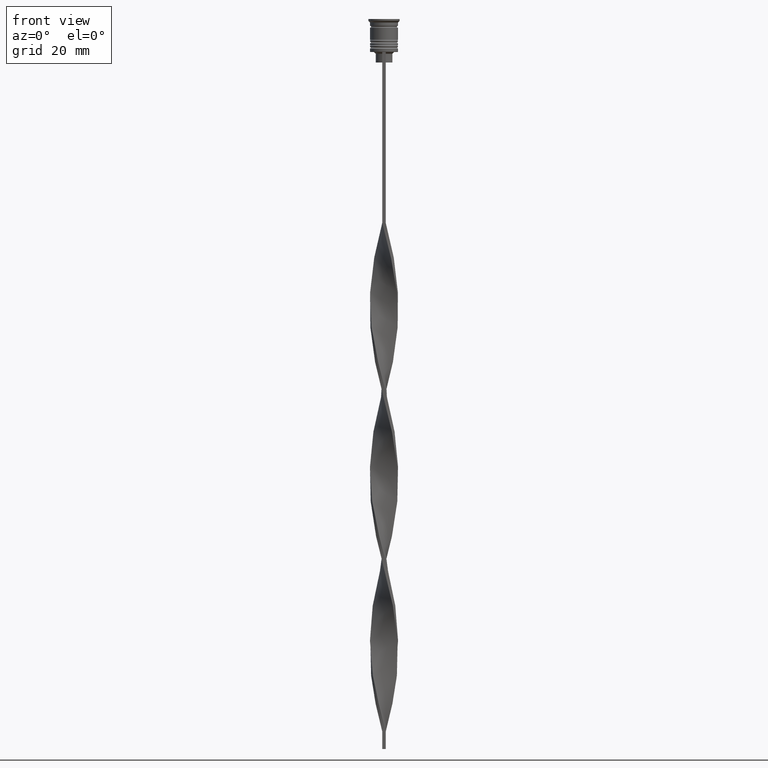
[diagram: clean part render]
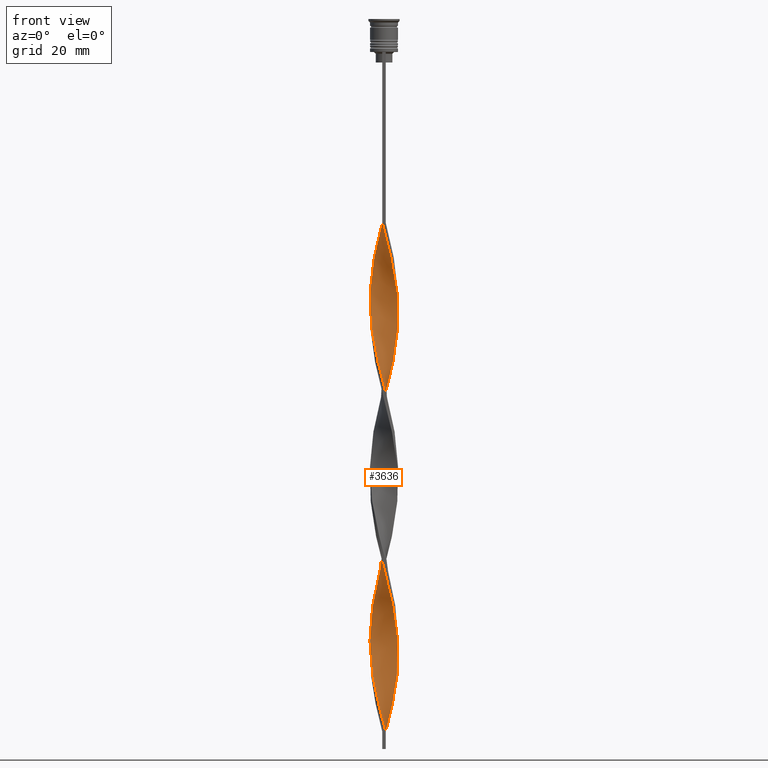
[diagram: same view with one face highlighted and labeled with its STEP entity id]
A machine part, front view. The second image highlights one B-rep face of the part: STEP entity #3636.
In plain terms, the highlighted face is a freeform B-spline surface patch.
Its self-contained STEP definition (entity closure, byte-faithful):
#1 = CARTESIAN_POINT ( 'NONE',  ( -3.710471077655234762, 1.575564781874742026, -127.2058823529411740 ) ) ;
#16 = CARTESIAN_POINT ( 'NONE',  ( -3.493386227310586900, -2.011529931876904875, -141.5196078431372371 ) ) ;
#20 = CARTESIAN_POINT ( 'NONE',  ( 2.240090901653234656, -3.372169066272035387, -114.3235294117646959 ) ) ;
#33 = CARTESIAN_POINT ( 'NONE',  ( 1.226484621108232531, 3.840017639827321805, -104.3039215686274446 ) ) ;
#37 = CARTESIAN_POINT ( 'NONE',  ( 3.927262761293754956, -0.9829235285346251683, -125.7745098039216032 ) ) ;
#52 = CARTESIAN_POINT ( 'NONE',  ( -4.041005374160881125, 0.2445547488692184912, -79.97058823529411598 ) ) ;
#55 = CARTESIAN_POINT ( 'NONE',  ( -1.341092642212325936, 3.819817009255230822, -114.3235294117646959 ) ) ;
#61 = CARTESIAN_POINT ( 'NONE',  ( -3.927262761293754956, 0.9829235285346253903, -77.10784313725490335 ) ) ;
#76 = CARTESIAN_POINT ( 'NONE',  ( -2.630408706874893365, 3.077414741952791299, -120.0490196078431353 ) ) ;
#80 = CARTESIAN_POINT ( 'NONE',  ( -3.151094474987767402, -2.541679576361500548, -91.42156862745096646 ) ) ;
#97 = CARTESIAN_POINT ( 'NONE',  ( 1.911202779450789535, 3.549268084523846678, -198.7745098039215463 ) ) ;
#116 = CARTESIAN_POINT ( 'NONE',  ( 3.984134067727318040, 0.6137391387019219824, -184.4607843137254690 ) ) ;
#126 = CARTESIAN_POINT ( 'NONE',  ( 4.017136395662697979, -0.5021420494578374694, -82.83333333333332860 ) ) ;
#142 = CARTESIAN_POINT ( 'NONE',  ( -3.856468655234276621, -1.231739002543613681, -183.0294117647059124 ) ) ;
#156 = CARTESIAN_POINT ( 'NONE',  ( 2.020147525076907424, 3.508352239459039623, -145.8137254901960489 ) ) ;
#160 = CARTESIAN_POINT ( 'NONE',  ( 4.029070884911789996, 0.1287936502943096417, -130.0686274509803866 ) ) ;
#175 = CARTESIAN_POINT ( 'NONE',  ( -1.341092642212326824, -3.819817009255229934, -100.0098039215686327 ) ) ;
#176 = CARTESIAN_POINT ( 'NONE',  ( 3.306990529297890724, 2.335239837431193788, -191.6176470588235077 ) ) ;
#181 = CARTESIAN_POINT ( 'NONE',  ( 1.341092642212325714, 3.819817009255231266, -148.6764705882353326 ) ) ;
#187 = CARTESIAN_POINT ( 'NONE',  ( 3.710471077655235206, -1.575564781874740694, -78.53921568627450256 ) ) ;
#199 = CARTESIAN_POINT ( 'NONE',  ( 4.041005374160881125, -0.2445547488692170757, -128.6372549019607732 ) ) ;
#203 = CARTESIAN_POINT ( 'NONE',  ( 3.151094474987767402, 2.541679576361500104, -140.0882352941176237 ) ) ;
#207 = CARTESIAN_POINT ( 'NONE',  ( 2.020147525076906536, -3.508352239459040067, -68.51960784313723707 ) ) ;
#216 = CARTESIAN_POINT ( 'NONE',  ( 1.911202779450790201, -3.549268084523846234, -112.8921568627450966 ) ) ;
#220 = CARTESIAN_POINT ( 'NONE',  ( 0.6163684578805417313, -4.001202492166770597, -62.79411764705881893 ) ) ;
#223 = CARTESIAN_POINT ( 'NONE',  ( -2.530837219374231672, -3.137652461479777610, -147.2450980392156907 ) ) ;
#232 = CARTESIAN_POINT ( 'NONE',  ( 4.029070884911789996, 0.1287936502943096417, -130.0686274509803866 ) ) ;
#244 = CARTESIAN_POINT ( 'NONE',  ( -4.017136395662697979, 0.5021420494578380245, -131.5000000000000000 ) ) ;
#260 = CARTESIAN_POINT ( 'NONE',  ( 2.890751590931329940, -2.809547159157145479, -72.81372549019607732 ) ) ;
#265 = CARTESIAN_POINT ( 'NONE',  ( 2.020147525076906536, -3.508352239459040067, -165.8529411764705799 ) ) ;
#281 = CARTESIAN_POINT ( 'NONE',  ( 4.017136395662697979, -0.5021420494578374694, -180.1666666666666288 ) ) ;
#299 = CARTESIAN_POINT ( 'NONE',  ( 2.530837219374230340, 3.137652461479778943, -98.57843137254901933 ) ) ;
#308 = VERTEX_POINT ( 'NONE', #503 ) ;
#312 = CARTESIAN_POINT ( 'NONE',  ( -1.680620083644616125, -3.664084624357134778, -195.9117647058823479 ) ) ;
#319 = CARTESIAN_POINT ( 'NONE',  ( -1.226484621108231199, -3.840017639827321805, -152.9705882352941160 ) ) ;
#325 = CARTESIAN_POINT ( 'NONE',  ( 0.4999999999999994449, -4.000000000000000000, -107.1666666666666572 ) ) ;
#338 = CARTESIAN_POINT ( 'NONE',  ( -0.5000000000000000000, -4.000000000000000000, -155.8333333333333144 ) ) ;
#342 = CARTESIAN_POINT ( 'NONE',  ( 3.679781925323282632, -1.687820026322619960, -122.9117647058823479 ) ) ;
#356 = CARTESIAN_POINT ( 'NONE',  ( 2.890751590931329940, -2.809547159157145479, -170.1470588235293917 ) ) ;
#361 = CARTESIAN_POINT ( 'NONE',  ( -3.936802525448487522, -0.8669405260007247982, -84.26470588235294201 ) ) ;
#375 = CARTESIAN_POINT ( 'NONE',  ( -3.306990529297890724, 2.335239837431193788, -71.38235294117646390 ) ) ;
#378 = CARTESIAN_POINT ( 'NONE',  ( -0.2435115214243295800, 4.023767157643892034, -110.0294117647058698 ) ) ;
#383 = CARTESIAN_POINT ( 'NONE',  ( -3.803522343308519016, 1.335371777428622009, -75.67647058823528994 ) ) ;
#396 = CARTESIAN_POINT ( 'NONE',  ( -0.9787305500464342778, 3.910509750710998933, -112.8921568627450966 ) ) ;
#399 = CARTESIAN_POINT ( 'NONE',  ( -0.2435115214243305515, -4.023767157643892034, -104.3039215686274446 ) ) ;
#416 = CARTESIAN_POINT ( 'NONE',  ( -3.064287033196558596, 2.619187847059357921, -167.2843137254901933 ) ) ;
#441 = CARTESIAN_POINT ( 'NONE',  ( -0.1293454150318810725, 4.046331823121016136, -154.4019607843137294 ) ) ;
#456 = CARTESIAN_POINT ( 'NONE',  ( 0.2435115214243293580, 4.023767157643892034, -152.9705882352941160 ) ) ;
#461 = CARTESIAN_POINT ( 'NONE',  ( -0.2435115214243305515, -4.023767157643892034, -201.6372549019607732 ) ) ;
#472 = CARTESIAN_POINT ( 'NONE',  ( 3.493386227310585568, -2.011529931876906208, -121.4803921568627345 ) ) ;
#491 = CARTESIAN_POINT ( 'NONE',  ( 2.530837219374230784, -3.137652461479778498, -115.7549019607843093 ) ) ;
#496 = CARTESIAN_POINT ( 'NONE',  ( -1.341092642212326824, -3.819817009255229934, -197.3431372549019898 ) ) ;
#503 = CARTESIAN_POINT ( 'NONE',  ( -0.5000000000000000000, -4.000000000000000000, -58.50000000000000000 ) ) ;
#512 = CARTESIAN_POINT ( 'NONE',  ( -1.226484621108232309, 3.840017639827321805, -158.6960784313725412 ) ) ;
#519 = CARTESIAN_POINT ( 'NONE',  ( 3.357783987531980152, -2.230535068783684682, -75.67647058823528994 ) ) ;
#528 = CARTESIAN_POINT ( 'NONE',  ( -4.041005374160881125, 0.2445547488692184912, -177.3039215686274588 ) ) ;
#535 = CARTESIAN_POINT ( 'NONE',  ( -0.2435115214243295800, 4.023767157643892034, -110.0294117647058698 ) ) ;
#551 = CARTESIAN_POINT ( 'NONE',  ( -0.1293454150318809337, -4.046331823121015248, -59.93137254901961342 ) ) ;
#556 = CARTESIAN_POINT ( 'NONE',  ( -1.226484621108231199, -3.840017639827321805, -152.9705882352941160 ) ) ;
#576 = CARTESIAN_POINT ( 'NONE',  ( 0.4999999999999997780, -1.333333333333333481, -204.5000000000000000 ) ) ;
#577 = CARTESIAN_POINT ( 'NONE',  ( -3.679781925323283076, -1.687820026322619293, -140.0882352941176237 ) ) ;
#594 = CARTESIAN_POINT ( 'NONE',  ( 0.2435115214243304405, -4.023767157643892034, -158.6960784313725412 ) ) ;
#603 = CARTESIAN_POINT ( 'NONE',  ( -3.564473500076193790, -1.919390561205868817, -185.8921568627451109 ) ) ;
#609 = CARTESIAN_POINT ( 'NONE',  ( -3.984134067727318040, -0.6137391387019215383, -135.7941176470588118 ) ) ;
#614 = CARTESIAN_POINT ( 'NONE',  ( -1.582314657248345080, 3.726367102775659745, -62.79411764705881893 ) ) ;
#631 = CARTESIAN_POINT ( 'NONE',  ( -1.680620083644616569, 3.664084624357134334, -115.7549019607843093 ) ) ;
#636 = CARTESIAN_POINT ( 'NONE',  ( -2.325278115975899951, -3.292883490705914795, -95.71568627450979250 ) ) ;
#650 = CARTESIAN_POINT ( 'NONE',  ( 2.020147525076906980, -3.508352239459040067, -165.8529411764705799 ) ) ;
#654 = CARTESIAN_POINT ( 'NONE',  ( 1.911202779450790201, -3.549268084523846234, -112.8921568627450966 ) ) ;
#668 = CARTESIAN_POINT ( 'NONE',  ( 4.041005374160881125, 0.2445547488692189353, -85.69607843137254122 ) ) ;
#671 = CARTESIAN_POINT ( 'NONE',  ( -3.564473500076194235, -1.919390561205868817, -88.55882352941175384 ) ) ;
#685 = CARTESIAN_POINT ( 'NONE',  ( -3.856468655234277065, -1.231739002543613681, -85.69607843137254122 ) ) ;
#687 = CARTESIAN_POINT ( 'NONE',  ( -0.6163684578805417313, 4.001202492166770597, -111.4607843137254974 ) ) ;
#693 = CARTESIAN_POINT ( 'NONE',  ( -4.029070884911789108, -0.1287936502943091699, -81.40196078431371518 ) ) ;
#707 = CARTESIAN_POINT ( 'NONE',  ( -3.710471077655235206, -1.575564781874741138, -87.12745098039215463 ) ) ;
#711 = CARTESIAN_POINT ( 'NONE',  ( -0.9787305500464337227, -3.910509750710999821, -198.7745098039215463 ) ) ;
#723 = VERTEX_POINT ( 'NONE', #3484 ) ;
#726 = CARTESIAN_POINT ( 'NONE',  ( 0.5000000000000005551, 4.000000000000000000, -204.5000000000000000 ) ) ;
#730 = CARTESIAN_POINT ( 'NONE',  ( -2.020147525076906536, -3.508352239459040067, -194.4803921568627914 ) ) ;
#745 = CARTESIAN_POINT ( 'NONE',  ( -1.680620083644616125, -3.664084624357134778, -98.57843137254901933 ) ) ;
#751 = CARTESIAN_POINT ( 'NONE',  ( 3.357783987531979708, 2.230535068783685571, -138.6568627450980387 ) ) ;
#757 = CARTESIAN_POINT ( 'NONE',  ( 2.325278115975899507, -3.292883490705915239, -69.95098039215686470 ) ) ;
#769 = CARTESIAN_POINT ( 'NONE',  ( 1.582314657248345080, -3.726367102775659301, -111.4607843137254974 ) ) ;
#774 = CARTESIAN_POINT ( 'NONE',  ( -2.890751590931330384, -2.809547159157145035, -190.1862745098039227 ) ) ;
#786 = CARTESIAN_POINT ( 'NONE',  ( 0.9787305500464340557, 3.910509750710999821, -150.1078431372548891 ) ) ;
#787 = CARTESIAN_POINT ( 'NONE',  ( 3.493386227310586456, 2.011529931876905319, -190.1862745098039227 ) ) ;
#791 = CARTESIAN_POINT ( 'NONE',  ( 4.017136395662697979, 0.5021420494578364702, -131.5000000000000000 ) ) ;
#803 = CARTESIAN_POINT ( 'NONE',  ( -2.530837219374230340, 3.137652461479778943, -164.4215686274509665 ) ) ;
#825 = CARTESIAN_POINT ( 'NONE',  ( -0.6163684578805426195, -4.001202492166770597, -102.8725490196078312 ) ) ;
#833 = CARTESIAN_POINT ( 'NONE',  ( 2.890751590931329940, -2.809547159157145479, -170.1470588235293917 ) ) ;
#849 = CARTESIAN_POINT ( 'NONE',  ( 0.8706545849681186500, 3.953668176878985641, -105.7352941176470722 ) ) ;
#864 = CARTESIAN_POINT ( 'NONE',  ( 3.564473500076193790, -1.919390561205869261, -77.10784313725490335 ) ) ;
#869 = CARTESIAN_POINT ( 'NONE',  ( 3.710471077655235206, -1.575564781874740694, -175.8725490196078454 ) ) ;
#891 = CARTESIAN_POINT ( 'NONE',  ( -0.5000000000000000000, -4.000000000000000000, -155.8333333333333144 ) ) ;
#905 = CARTESIAN_POINT ( 'NONE',  ( 2.821583537095227356, 2.903135856687522942, -97.14705882352940591 ) ) ;
#911 = CARTESIAN_POINT ( 'NONE',  ( -3.927262761293754956, -0.9829235285346239470, -137.2254901960784821 ) ) ;
#923 = CARTESIAN_POINT ( 'NONE',  ( 3.679781925323283076, 1.687820026322619738, -91.42156862745098067 ) ) ;
#929 = CARTESIAN_POINT ( 'NONE',  ( 2.821583537095226468, -2.903135856687523830, -117.1862745098039369 ) ) ;
#946 = CARTESIAN_POINT ( 'NONE',  ( -1.226484621108232309, 3.840017639827321805, -61.36274509803921262 ) ) ;
#948 = CARTESIAN_POINT ( 'NONE',  ( 0.9787305500464337227, -3.910509750710999821, -161.5588235294117680 ) ) ;
#954 = CARTESIAN_POINT ( 'NONE',  ( 3.679781925323283076, 1.687820026322619738, -188.7549019607843093 ) ) ;
#966 = CARTESIAN_POINT ( 'NONE',  ( -2.240090901653234656, 3.372169066272035387, -65.65686274509803866 ) ) ;
#968 = CARTESIAN_POINT ( 'NONE',  ( 3.151094474987766958, -2.541679576361500104, -171.5784313725490620 ) ) ;
#972 = CARTESIAN_POINT ( 'NONE',  ( -4.017136395662697979, -0.5021420494578370253, -82.83333333333332860 ) ) ;
#986 = CARTESIAN_POINT ( 'NONE',  ( -0.5000000000000000000, 4.000000000000000000, -58.50000000000000000 ) ) ;
#988 = CARTESIAN_POINT ( 'NONE',  ( 3.984134067727318040, 0.6137391387019219824, -87.12745098039215463 ) ) ;
#991 = CARTESIAN_POINT ( 'NONE',  ( -2.020147525076906536, -3.508352239459040067, -97.14705882352939170 ) ) ;
#1008 = CARTESIAN_POINT ( 'NONE',  ( -3.679781925323283076, 1.687820026322619293, -74.24509803921567652 ) ) ;
#1016 = CARTESIAN_POINT ( 'NONE',  ( -3.984134067727318040, 0.6137391387019215383, -78.53921568627450256 ) ) ;
#1037 = CARTESIAN_POINT ( 'NONE',  ( 3.927262761293754956, 0.9829235285346250572, -88.55882352941175384 ) ) ;
#1046 = CARTESIAN_POINT ( 'NONE',  ( -2.630408706874892921, -3.077414741952791744, -94.28431372549020750 ) ) ;
#1047 = CARTESIAN_POINT ( 'NONE',  ( 4.029070884911789996, -0.1287936502943097528, -181.5980392156862706 ) ) ;
#1050 = CARTESIAN_POINT ( 'NONE',  ( -2.821583537095227356, 2.903135856687522942, -165.8529411764705799 ) ) ;
#1068 = CARTESIAN_POINT ( 'NONE',  ( -3.064287033196558596, 2.619187847059357921, -167.2843137254901933 ) ) ;
#1074 = CARTESIAN_POINT ( 'NONE',  ( 0.2435115214243293580, 4.023767157643892034, -152.9705882352941160 ) ) ;
#1079 = CARTESIAN_POINT ( 'NONE',  ( 3.564473500076194235, -1.919390561205869261, -77.10784313725490335 ) ) ;
#1080 = ORIENTED_EDGE ( 'NONE', *, *, #2331, .T. ) ;
#1090 = CARTESIAN_POINT ( 'NONE',  ( -2.020147525076906980, -3.508352239459040067, -97.14705882352940591 ) ) ;
#1094 = CARTESIAN_POINT ( 'NONE',  ( -4.041005374160881125, 0.2445547488692185190, -177.3039215686274304 ) ) ;
#1097 = CARTESIAN_POINT ( 'NONE',  ( 4.029070884911789996, -0.1287936502943097528, -84.26470588235294201 ) ) ;
#1104 = CARTESIAN_POINT ( 'NONE',  ( -3.803522343308519016, 1.335371777428622009, -173.0098039215686185 ) ) ;
#1110 = CARTESIAN_POINT ( 'NONE',  ( -3.493386227310586012, 2.011529931876905763, -170.1470588235293917 ) ) ;
#1113 = CARTESIAN_POINT ( 'NONE',  ( 2.890751590931329940, -2.809547159157145479, -72.81372549019607732 ) ) ;
#1123 = CARTESIAN_POINT ( 'NONE',  ( -3.493386227310586012, 2.011529931876905763, -170.1470588235293917 ) ) ;
#1130 = CARTESIAN_POINT ( 'NONE',  ( 1.680620083644616125, -3.664084624357134778, -67.08823529411763786 ) ) ;
#1136 = CARTESIAN_POINT ( 'NONE',  ( 2.821583537095227356, 2.903135856687522942, -97.14705882352939170 ) ) ;
#1154 = CARTESIAN_POINT ( 'NONE',  ( -2.630408706874893809, 3.077414741952791744, -120.0490196078431211 ) ) ;
#1163 = CARTESIAN_POINT ( 'NONE',  ( -3.710471077655235206, -1.575564781874741138, -184.4607843137254690 ) ) ;
#1171 = CARTESIAN_POINT ( 'NONE',  ( 3.357783987531980152, -2.230535068783684682, -173.0098039215686185 ) ) ;
#1192 = CARTESIAN_POINT ( 'NONE',  ( -2.890751590931329496, 2.809547159157145924, -121.4803921568627345 ) ) ;
#1211 = CARTESIAN_POINT ( 'NONE',  ( -3.710471077655234762, 1.575564781874742026, -127.2058823529411740 ) ) ;
#1215 = CARTESIAN_POINT ( 'NONE',  ( 3.064287033196559040, 2.619187847059357477, -95.71568627450979250 ) ) ;
#1228 = CARTESIAN_POINT ( 'NONE',  ( 3.927262761293755400, 0.9829235285346250572, -88.55882352941175384 ) ) ;
#1233 = CARTESIAN_POINT ( 'NONE',  ( 2.530837219374230784, -3.137652461479778498, -115.7549019607843093 ) ) ;
#1245 = CARTESIAN_POINT ( 'NONE',  ( -3.936802525448487522, 0.8669405260007250202, -130.0686274509803866 ) ) ;
#1253 = CARTESIAN_POINT ( 'NONE',  ( -2.630408706874893365, -3.077414741952792188, -94.28431372549020750 ) ) ;
#1271 = CARTESIAN_POINT ( 'NONE',  ( 2.630408706874892921, -3.077414741952791744, -168.7156862745097783 ) ) ;
#1275 = CARTESIAN_POINT ( 'NONE',  ( 2.821583537095227356, 2.903135856687522942, -194.4803921568627914 ) ) ;
#1286 = CARTESIAN_POINT ( 'NONE',  ( 0.5000000000000005551, 4.000000000000000000, -204.5000000000000000 ) ) ;
#1290 = CARTESIAN_POINT ( 'NONE',  ( 4.017136395662697979, -0.5021420494578374694, -82.83333333333332860 ) ) ;
#1293 = CARTESIAN_POINT ( 'NONE',  ( -2.890751590931330384, -2.809547159157145035, -92.85294117647057988 ) ) ;
#1311 = CARTESIAN_POINT ( 'NONE',  ( 0.5000000000000005551, 4.000000000000000000, -204.5000000000000000 ) ) ;
#1322 =( BOUNDED_SURFACE ( )  B_SPLINE_SURFACE ( 1, 2, ( 
 ( #2000, #2597, #2037, #3213, #1694, #2909, #3825, #207, #757, #1374, #1113, #2336, #519, #1079, #187, #1395, #2854, #126, #1097, #1340, #3766, #1037, #2260, #3466, #2732, #2114, #1215, #1136, #299, #2990, #2394, #2653, #3267, #849, #2053, #1453, #535, #2435, #2675, #1735, #3862, #3882, #3306, #1154, #1192, #3023, #3644, #2071, #1, #3324, #2967, #244, #2691, #1510, #1752, #911, #2132, #577, #3342, #1811, #2948, #2416, #223, #2377, #1471, #3625, #556, #3917, #891, #3583, #594, #1775, #1431, #3283, #2358, #265, #3566, #3900, #833, #1794, #1171, #3602, #869, #2095, #3006, #281, #1490, #2708, #2828, #3686, #2453, #954, #1553, #3723, #2810, #1275, #1915, #3423, #97, #2515, #3047, #1872, #1311 ),
 ( #3366, #3744, #2194, #614, #3663, #3109, #1532, #2497, #2770, #2176, #3705, #2237, #383, #61, #1016, #1594, #693, #972, #361, #1833, #3401, #671, #1893, #80, #1293, #1253, #636, #991, #2215, #3127, #2473, #2154, #399, #1612, #325, #2535, #3385, #2752, #654, #20, #1233, #929, #3088, #1854, #3067, #342, #1572, #37, #2791, #1690, #160, #791, #2316, #2928, #1391, #1933, #751, #203, #3506, #2633, #2615, #2848, #1977, #181, #1410, #2274, #1074, #441, #3483, #1651, #3165, #2905, #1336, #2870, #3144, #1050, #416, #3840, #1110, #3189, #1997, #3822, #3801, #1094, #1712, #3444, #2298, #142, #1953, #3523, #2255, #2592, #774, #1628, #2013, #730, #3227, #496, #711, #3779, #461, #3460, #1353 ) ),
 .UNSPECIFIED., .F., .F., .T. ) 
 B_SPLINE_SURFACE_WITH_KNOTS ( ( 2, 2 ),
 ( 3, 2, 2, 2, 2, 2, 2, 2, 2, 2, 2, 2, 2, 2, 2, 2, 2, 2, 2, 2, 2, 2, 2, 2, 2, 2, 2, 2, 2, 2, 2, 2, 2, 2, 2, 2, 2, 2, 2, 2, 2, 2, 2, 2, 2, 2, 2, 2, 2, 2, 2, 3 ),
 ( 0.000000000000000000, 1.000000000000000000 ),
 ( 0.000000000000000000, 0.01470588235294117627, 0.02941176470588235253, 0.04411764705882353227, 0.05882352941176470507, 0.07352941176470588480, 0.08823529411764706454, 0.1029411764705882304, 0.1176470588235294101, 0.1323529411764705899, 0.1470588235294117696, 0.1617647058823529493, 0.1764705882352941291, 0.1911764705882352811, 0.2058823529411764608, 0.2205882352941176405, 0.2352941176470588203, 0.2500000000000000000, 0.2647058823529411797, 0.2794117647058823595, 0.2941176470588235392, 0.3088235294117647189, 0.3235294117647058987, 0.3382352941176470784, 0.3529411764705882582, 0.3676470588235294379, 0.3823529411764705621, 0.3970588235294117418, 0.4117647058823529216, 0.4264705882352941013, 0.4411764705882352811, 0.4558823529411764608, 0.4705882352941176405, 0.4852941176470588203, 0.5000000000000000000, 0.5147058823529411242, 0.5294117647058823595, 0.5441176470588234837, 0.5588235294117647189, 0.5735294117647058432, 0.5882352941176470784, 0.6029411764705882026, 0.6176470588235294379, 0.6323529411764705621, 0.6470588235294117974, 0.6617647058823529216, 0.6764705882352941568, 0.6911764705882352811, 0.7058823529411765163, 0.7205882352941176405, 0.7352941176470588758, 0.7500000000000000000 ),
 .UNSPECIFIED. ) 
 GEOMETRIC_REPRESENTATION_ITEM ( )  RATIONAL_B_SPLINE_SURFACE ( (
 ( 1.000000000000000000, 0.9957341762950344677, 1.000000000000000000, 0.9957341762950344677, 1.000000000000000000, 0.9957341762950344677, 1.000000000000000000, 0.9957341762950344677, 1.000000000000000000, 0.9957341762950344677, 1.000000000000000000, 0.9957341762950344677, 1.000000000000000000, 0.9957341762950344677, 1.000000000000000000, 0.9957341762950344677, 1.000000000000000000, 0.9957341762950344677, 1.000000000000000000, 0.9957341762950344677, 1.000000000000000000, 0.9957341762950344677, 1.000000000000000000, 0.9957341762950344677, 1.000000000000000000, 0.9957341762950344677, 1.000000000000000000, 0.9957341762950344677, 1.000000000000000000, 0.9957341762950344677, 1.000000000000000000, 0.9957341762950344677, 1.000000000000000000, 0.9957341762950344677, 1.000000000000000000, 0.9957341762950344677, 1.000000000000000000, 0.9957341762950344677, 1.000000000000000000, 0.9957341762950344677, 1.000000000000000000, 0.9957341762950344677, 1.000000000000000000, 0.9957341762950344677, 1.000000000000000000, 0.9957341762950344677, 1.000000000000000000, 0.9957341762950344677, 1.000000000000000000, 0.9957341762950344677, 1.000000000000000000, 0.9957341762950344677, 1.000000000000000000, 0.9957341762950344677, 1.000000000000000000, 0.9957341762950344677, 1.000000000000000000, 0.9957341762950344677, 1.000000000000000000, 0.9957341762950344677, 1.000000000000000000, 0.9957341762950344677, 1.000000000000000000, 0.9957341762950344677, 1.000000000000000000, 0.9957341762950344677, 1.000000000000000000, 0.9957341762950344677, 1.000000000000000000, 0.9957341762950344677, 1.000000000000000000, 0.9957341762950344677, 1.000000000000000000, 0.9957341762950344677, 1.000000000000000000, 0.9957341762950344677, 1.000000000000000000, 0.9957341762950344677, 1.000000000000000000, 0.9957341762950344677, 1.000000000000000000, 0.9957341762950344677, 1.000000000000000000, 0.9957341762950344677, 1.000000000000000000, 0.9957341762950344677, 1.000000000000000000, 0.9957341762950344677, 1.000000000000000000, 0.9957341762950344677, 1.000000000000000000, 0.9957341762950344677, 1.000000000000000000, 0.9957341762950344677, 1.000000000000000000, 0.9957341762950344677, 1.000000000000000000, 0.9957341762950344677, 1.000000000000000000, 0.9957341762950344677, 1.000000000000000000, 0.9957341762950344677, 1.000000000000000000),
 ( 1.000000000000000000, 0.9957341762950344677, 1.000000000000000000, 0.9957341762950344677, 1.000000000000000000, 0.9957341762950344677, 1.000000000000000000, 0.9957341762950344677, 1.000000000000000000, 0.9957341762950344677, 1.000000000000000000, 0.9957341762950344677, 1.000000000000000000, 0.9957341762950344677, 1.000000000000000000, 0.9957341762950344677, 1.000000000000000000, 0.9957341762950344677, 1.000000000000000000, 0.9957341762950344677, 1.000000000000000000, 0.9957341762950344677, 1.000000000000000000, 0.9957341762950344677, 1.000000000000000000, 0.9957341762950344677, 1.000000000000000000, 0.9957341762950344677, 1.000000000000000000, 0.9957341762950344677, 1.000000000000000000, 0.9957341762950344677, 1.000000000000000000, 0.9957341762950344677, 1.000000000000000000, 0.9957341762950344677, 1.000000000000000000, 0.9957341762950344677, 1.000000000000000000, 0.9957341762950344677, 1.000000000000000000, 0.9957341762950344677, 1.000000000000000000, 0.9957341762950344677, 1.000000000000000000, 0.9957341762950344677, 1.000000000000000000, 0.9957341762950344677, 1.000000000000000000, 0.9957341762950344677, 1.000000000000000000, 0.9957341762950344677, 1.000000000000000000, 0.9957341762950344677, 1.000000000000000000, 0.9957341762950344677, 1.000000000000000000, 0.9957341762950344677, 1.000000000000000000, 0.9957341762950344677, 1.000000000000000000, 0.9957341762950344677, 1.000000000000000000, 0.9957341762950344677, 1.000000000000000000, 0.9957341762950344677, 1.000000000000000000, 0.9957341762950344677, 1.000000000000000000, 0.9957341762950344677, 1.000000000000000000, 0.9957341762950344677, 1.000000000000000000, 0.9957341762950344677, 1.000000000000000000, 0.9957341762950344677, 1.000000000000000000, 0.9957341762950344677, 1.000000000000000000, 0.9957341762950344677, 1.000000000000000000, 0.9957341762950344677, 1.000000000000000000, 0.9957341762950344677, 1.000000000000000000, 0.9957341762950344677, 1.000000000000000000, 0.9957341762950344677, 1.000000000000000000, 0.9957341762950344677, 1.000000000000000000, 0.9957341762950344677, 1.000000000000000000, 0.9957341762950344677, 1.000000000000000000, 0.9957341762950344677, 1.000000000000000000, 0.9957341762950344677, 1.000000000000000000, 0.9957341762950344677, 1.000000000000000000, 0.9957341762950344677, 1.000000000000000000) ) ) 
 REPRESENTATION_ITEM ( '' )  SURFACE ( )  );
#1331 = CARTESIAN_POINT ( 'NONE',  ( 3.936802525448486634, -0.8669405260007252423, -178.7352941176470438 ) ) ;
#1336 = CARTESIAN_POINT ( 'NONE',  ( -1.911202779450789535, 3.549268084523846678, -161.5588235294117680 ) ) ;
#1340 = CARTESIAN_POINT ( 'NONE',  ( 4.041005374160881125, 0.2445547488692189630, -85.69607843137254122 ) ) ;
#1353 = CARTESIAN_POINT ( 'NONE',  ( 0.4999999999999994449, -4.000000000000000000, -204.5000000000000000 ) ) ;
#1367 = CARTESIAN_POINT ( 'NONE',  ( 3.064287033196558596, -2.619187847059357921, -118.6176470588235219 ) ) ;
#1374 = CARTESIAN_POINT ( 'NONE',  ( 2.630408706874893365, -3.077414741952792188, -71.38235294117646390 ) ) ;
#1385 = CARTESIAN_POINT ( 'NONE',  ( 0.4999999999999994449, -4.000000000000000000, -107.1666666666666572 ) ) ;
#1386 = VECTOR ( 'NONE', #2510, 1000.000000000000000 ) ;
#1387 = CARTESIAN_POINT ( 'NONE',  ( 3.357783987531980152, -2.230535068783684682, -173.0098039215686185 ) ) ;
#1391 = CARTESIAN_POINT ( 'NONE',  ( 3.710471077655235206, 1.575564781874740694, -135.7941176470588118 ) ) ;
#1395 = CARTESIAN_POINT ( 'NONE',  ( 3.856468655234276621, -1.231739002543613237, -79.97058823529411598 ) ) ;
#1406 = CARTESIAN_POINT ( 'NONE',  ( 3.856468655234277065, 1.231739002543614125, -134.3627450980391984 ) ) ;
#1410 = CARTESIAN_POINT ( 'NONE',  ( 0.9787305500464340557, 3.910509750710999821, -150.1078431372548891 ) ) ;
#1423 = CARTESIAN_POINT ( 'NONE',  ( -1.911202779450789535, 3.549268084523846678, -161.5588235294117680 ) ) ;
#1428 = CARTESIAN_POINT ( 'NONE',  ( 0.4999999999999994449, -4.000000000000000000, -204.5000000000000000 ) ) ;
#1431 = CARTESIAN_POINT ( 'NONE',  ( 0.9787305500464337227, -3.910509750710999821, -161.5588235294117680 ) ) ;
#1440 = CARTESIAN_POINT ( 'NONE',  ( 3.936802525448487522, 0.8669405260007234659, -132.9313725490196134 ) ) ;
#1451 = CARTESIAN_POINT ( 'NONE',  ( 0.5000000000000005551, 4.000000000000000000, -204.5000000000000000 ) ) ;
#1453 = CARTESIAN_POINT ( 'NONE',  ( 0.1293454150318806006, 4.046331823121015248, -108.5980392156862706 ) ) ;
#1462 = CARTESIAN_POINT ( 'NONE',  ( -3.357783987531980152, -2.230535068783684238, -187.3235294117646959 ) ) ;
#1471 = CARTESIAN_POINT ( 'NONE',  ( -1.911202779450789979, -3.549268084523846678, -150.1078431372548891 ) ) ;
#1490 = CARTESIAN_POINT ( 'NONE',  ( 4.029070884911789996, -0.1287936502943097528, -181.5980392156862706 ) ) ;
#1499 = CARTESIAN_POINT ( 'NONE',  ( -3.936802525448487522, -0.8669405260007247982, -181.5980392156862706 ) ) ;
#1510 = CARTESIAN_POINT ( 'NONE',  ( -4.041005374160881125, -0.2445547488692193794, -134.3627450980391984 ) ) ;
#1528 = CARTESIAN_POINT ( 'NONE',  ( -0.1293454150318809337, -4.046331823121015248, -157.2647058823529278 ) ) ;
#1532 = CARTESIAN_POINT ( 'NONE',  ( -2.530837219374230340, 3.137652461479778943, -67.08823529411763786 ) ) ;
#1549 = CARTESIAN_POINT ( 'NONE',  ( 0.6163684578805417313, -4.001202492166770597, -160.1274509803921831 ) ) ;
#1553 = CARTESIAN_POINT ( 'NONE',  ( 3.493386227310586456, 2.011529931876905319, -190.1862745098039227 ) ) ;
#1563 = CARTESIAN_POINT ( 'NONE',  ( -3.803522343308519016, 1.335371777428622009, -75.67647058823528994 ) ) ;
#1565 = CARTESIAN_POINT ( 'NONE',  ( 0.1293454150318806006, 4.046331823121015248, -108.5980392156862706 ) ) ;
#1572 = CARTESIAN_POINT ( 'NONE',  ( 3.803522343308519016, -1.335371777428620899, -124.3431372549019471 ) ) ;
#1588 = CARTESIAN_POINT ( 'NONE',  ( -3.984134067727318040, 0.6137391387019215383, -78.53921568627450256 ) ) ;
#1590 = CARTESIAN_POINT ( 'NONE',  ( -2.020147525076906092, 3.508352239459040067, -117.1862745098039227 ) ) ;
#1594 = CARTESIAN_POINT ( 'NONE',  ( -4.041005374160881125, 0.2445547488692185190, -79.97058823529411598 ) ) ;
#1609 = CARTESIAN_POINT ( 'NONE',  ( 1.911202779450789535, 3.549268084523846678, -101.4411764705882320 ) ) ;
#1612 = CARTESIAN_POINT ( 'NONE',  ( 0.1293454150318815721, -4.046331823121016136, -105.7352941176470722 ) ) ;
#1624 = CARTESIAN_POINT ( 'NONE',  ( -3.493386227310586012, 2.011529931876905763, -72.81372549019607732 ) ) ;
#1628 = CARTESIAN_POINT ( 'NONE',  ( -2.630408706874893365, -3.077414741952792188, -191.6176470588235077 ) ) ;
#1651 = CARTESIAN_POINT ( 'NONE',  ( -0.8706545849681190941, 3.953668176878984752, -157.2647058823529278 ) ) ;
#1670 = CARTESIAN_POINT ( 'NONE',  ( 0.8706545849681194271, -3.953668176878985197, -108.5980392156862706 ) ) ;
#1686 = CARTESIAN_POINT ( 'NONE',  ( 3.927262761293755400, -0.9829235285346252793, -125.7745098039216032 ) ) ;
#1687 = CARTESIAN_POINT ( 'NONE',  ( 3.856468655234277065, -1.231739002543613237, -177.3039215686274588 ) ) ;
#1690 = CARTESIAN_POINT ( 'NONE',  ( 4.041005374160881125, -0.2445547488692170757, -128.6372549019607447 ) ) ;
#1694 = CARTESIAN_POINT ( 'NONE',  ( 0.9787305500464337227, -3.910509750710999821, -64.22549019607842524 ) ) ;
#1706 = CARTESIAN_POINT ( 'NONE',  ( 2.890751590931330828, 2.809547159157144591, -141.5196078431372371 ) ) ;
#1712 = CARTESIAN_POINT ( 'NONE',  ( -4.029070884911789108, -0.1287936502943091699, -178.7352941176470438 ) ) ;
#1728 = CARTESIAN_POINT ( 'NONE',  ( -3.306990529297890724, 2.335239837431193788, -168.7156862745097783 ) ) ;
#1735 = CARTESIAN_POINT ( 'NONE',  ( -1.341092642212325936, 3.819817009255230822, -114.3235294117646959 ) ) ;
#1745 = CARTESIAN_POINT ( 'NONE',  ( 3.984134067727318040, -0.6137391387019228706, -127.2058823529411740 ) ) ;
#1752 = CARTESIAN_POINT ( 'NONE',  ( -3.984134067727318040, -0.6137391387019215383, -135.7941176470588118 ) ) ;
#1769 = CARTESIAN_POINT ( 'NONE',  ( 1.341092642212326380, -3.819817009255230822, -65.65686274509803866 ) ) ;
#1775 = CARTESIAN_POINT ( 'NONE',  ( 0.6163684578805417313, -4.001202492166771485, -160.1274509803922115 ) ) ;
#1794 = CARTESIAN_POINT ( 'NONE',  ( 3.151094474987767402, -2.541679576361500104, -171.5784313725490335 ) ) ;
#1802 = CARTESIAN_POINT ( 'NONE',  ( -3.151094474987766958, -2.541679576361500548, -188.7549019607843093 ) ) ;
#1811 = CARTESIAN_POINT ( 'NONE',  ( -3.306990529297890724, -2.335239837431195120, -142.9509803921568789 ) ) ;
#1821 = CARTESIAN_POINT ( 'NONE',  ( -1.341092642212326824, -3.819817009255229934, -197.3431372549019613 ) ) ;
#1827 = CARTESIAN_POINT ( 'NONE',  ( -2.530837219374231672, -3.137652461479777610, -147.2450980392156907 ) ) ;
#1833 = CARTESIAN_POINT ( 'NONE',  ( -3.856468655234276621, -1.231739002543613681, -85.69607843137254122 ) ) ;
#1850 = CARTESIAN_POINT ( 'NONE',  ( -4.029070884911789996, 0.1287936502943111128, -132.9313725490196134 ) ) ;
#1854 = CARTESIAN_POINT ( 'NONE',  ( 3.306990529297891612, -2.335239837431193344, -120.0490196078431211 ) ) ;
#1868 = CARTESIAN_POINT ( 'NONE',  ( -1.582314657248346412, -3.726367102775658413, -151.5392156862744741 ) ) ;
#1872 = CARTESIAN_POINT ( 'NONE',  ( 0.8706545849681186500, 3.953668176878985641, -203.0686274509803582 ) ) ;
#1887 = CARTESIAN_POINT ( 'NONE',  ( 3.803522343308519016, 1.335371777428621565, -89.99019607843136725 ) ) ;
#1893 = CARTESIAN_POINT ( 'NONE',  ( -3.357783987531980152, -2.230535068783684238, -89.99019607843136725 ) ) ;
#1908 = ORIENTED_EDGE ( 'NONE', *, *, #2235, .T. ) ;
#1912 = CARTESIAN_POINT ( 'NONE',  ( 4.029070884911789996, -0.1287936502943097528, -84.26470588235294201 ) ) ;
#1915 = CARTESIAN_POINT ( 'NONE',  ( 2.530837219374230340, 3.137652461479778943, -195.9117647058823479 ) ) ;
#1933 = CARTESIAN_POINT ( 'NONE',  ( 3.564473500076195123, 1.919390561205867707, -137.2254901960784821 ) ) ;
#1953 = CARTESIAN_POINT ( 'NONE',  ( -3.710471077655235206, -1.575564781874741138, -184.4607843137254690 ) ) ;
#1971 = CARTESIAN_POINT ( 'NONE',  ( -0.2435115214243305515, -4.023767157643892034, -104.3039215686274446 ) ) ;
#1977 = CARTESIAN_POINT ( 'NONE',  ( 1.680620083644617901, 3.664084624357133446, -147.2450980392156907 ) ) ;
#1990 =( BOUNDED_CURVE ( )  B_SPLINE_CURVE ( 2, ( #986, #3159, #946, #3082, #2170, #966, #3737, #2232, #3379, #375, #1624, #1008, #1563, #3440, #1588, #52, #2805, #2207, #3415, #685, #707, #2842, #2899, #3557, #3835, #1046, #2941, #1090, #745, #175, #3205, #825, #1971, #2046, #1385, #1670, #2609, #769, #216, #2027, #491, #2958, #1367, #3241, #472, #3818, #3851, #1686, #1745, #199, #232, #2587, #1440, #1406, #3775, #2883, #2328, #3184, #1706, #1991, #2311, #156, #3518, #3477, #786, #2269, #456, #3795, #2008, #3535, #512, #2628, #1423, #3260, #803, #3222, #1068, #1728, #1123, #2922, #1104, #2643, #2346, #528, #2292, #3502, #1499, #2083, #1163, #603, #1462, #1802, #2719, #3575, #2122, #3892, #312, #1821, #2141, #2997, #3909, #2367, #3930 ),
 .UNSPECIFIED., .F., .F. ) 
 B_SPLINE_CURVE_WITH_KNOTS ( ( 3, 2, 2, 2, 2, 2, 2, 2, 2, 2, 2, 2, 2, 2, 2, 2, 2, 2, 2, 2, 2, 2, 2, 2, 2, 2, 2, 2, 2, 2, 2, 2, 2, 2, 2, 2, 2, 2, 2, 2, 2, 2, 2, 2, 2, 2, 2, 2, 2, 2, 2, 3 ),
 ( 0.000000000000000000, 0.01470588235294117453, 0.02941176470588234906, 0.04411764705882353227, 0.05882352941176469813, 0.07352941176470588480, 0.08823529411764706454, 0.1029411764705882443, 0.1176470588235293963, 0.1323529411764705899, 0.1470588235294117696, 0.1617647058823529493, 0.1764705882352941291, 0.1911764705882352811, 0.2058823529411764885, 0.2205882352941176405, 0.2352941176470587925, 0.2500000000000000000, 0.2647058823529411797, 0.2794117647058823595, 0.2941176470588235392, 0.3088235294117647189, 0.3235294117647058987, 0.3382352941176470229, 0.3529411764705882582, 0.3676470588235294379, 0.3823529411764705621, 0.3970588235294117418, 0.4117647058823529771, 0.4264705882352941013, 0.4411764705882352811, 0.4558823529411764608, 0.4705882352941175850, 0.4852941176470588203, 0.5000000000000000000, 0.5147058823529411242, 0.5294117647058823595, 0.5441176470588234837, 0.5588235294117647189, 0.5735294117647058432, 0.5882352941176470784, 0.6029411764705882026, 0.6176470588235294379, 0.6323529411764705621, 0.6470588235294117974, 0.6617647058823529216, 0.6764705882352940458, 0.6911764705882351700, 0.7058823529411765163, 0.7205882352941176405, 0.7352941176470588758, 0.7500000000000000000 ),
 .UNSPECIFIED. ) 
 CURVE ( )  GEOMETRIC_REPRESENTATION_ITEM ( )  RATIONAL_B_SPLINE_CURVE ( ( 1.000000000000000000, 0.9957341762950344677, 1.000000000000000000, 0.9957341762950344677, 1.000000000000000000, 0.9957341762950344677, 1.000000000000000000, 0.9957341762950344677, 1.000000000000000000, 0.9957341762950344677, 1.000000000000000000, 0.9957341762950344677, 1.000000000000000000, 0.9957341762950344677, 1.000000000000000000, 0.9957341762950344677, 1.000000000000000000, 0.9957341762950344677, 1.000000000000000000, 0.9957341762950344677, 1.000000000000000000, 0.9957341762950344677, 1.000000000000000000, 0.9957341762950344677, 1.000000000000000000, 0.9957341762950344677, 1.000000000000000000, 0.9957341762950344677, 1.000000000000000000, 0.9957341762950344677, 1.000000000000000000, 0.9957341762950344677, 1.000000000000000000, 0.9957341762950344677, 1.000000000000000000, 0.9957341762950344677, 1.000000000000000000, 0.9957341762950344677, 1.000000000000000000, 0.9957341762950344677, 1.000000000000000000, 0.9957341762950344677, 1.000000000000000000, 0.9957341762950344677, 1.000000000000000000, 0.9957341762950344677, 1.000000000000000000, 0.9957341762950344677, 1.000000000000000000, 0.9957341762950344677, 1.000000000000000000, 0.9957341762950344677, 1.000000000000000000, 0.9957341762950344677, 1.000000000000000000, 0.9957341762950344677, 1.000000000000000000, 0.9957341762950344677, 1.000000000000000000, 0.9957341762950344677, 1.000000000000000000, 0.9957341762950344677, 1.000000000000000000, 0.9957341762950344677, 1.000000000000000000, 0.9957341762950344677, 1.000000000000000000, 0.9957341762950344677, 1.000000000000000000, 0.9957341762950344677, 1.000000000000000000, 0.9957341762950344677, 1.000000000000000000, 0.9957341762950344677, 1.000000000000000000, 0.9957341762950344677, 1.000000000000000000, 0.9957341762950344677, 1.000000000000000000, 0.9957341762950344677, 1.000000000000000000, 0.9957341762950344677, 1.000000000000000000, 0.9957341762950344677, 1.000000000000000000, 0.9957341762950344677, 1.000000000000000000, 0.9957341762950344677, 1.000000000000000000, 0.9957341762950344677, 1.000000000000000000, 0.9957341762950344677, 1.000000000000000000, 0.9957341762950344677, 1.000000000000000000, 0.9957341762950344677, 1.000000000000000000, 0.9957341762950344677, 1.000000000000000000, 0.9957341762950344677, 1.000000000000000000, 0.9957341762950344677, 1.000000000000000000 ) ) 
 REPRESENTATION_ITEM ( '' )  );
#1991 = CARTESIAN_POINT ( 'NONE',  ( 2.630408706874892033, 3.077414741952792188, -142.9509803921568789 ) ) ;
#1993 = CARTESIAN_POINT ( 'NONE',  ( 1.582314657248345968, 3.726367102775659301, -200.2058823529411882 ) ) ;
#1997 = CARTESIAN_POINT ( 'NONE',  ( -3.803522343308519016, 1.335371777428622009, -173.0098039215686185 ) ) ;
#2000 = CARTESIAN_POINT ( 'NONE',  ( -0.5000000000000000000, -4.000000000000000000, -58.50000000000000000 ) ) ;
#2008 = CARTESIAN_POINT ( 'NONE',  ( -0.5000000000000000000, 4.000000000000000000, -155.8333333333333144 ) ) ;
#2009 = CARTESIAN_POINT ( 'NONE',  ( 3.927262761293755400, 0.9829235285346250572, -185.8921568627451109 ) ) ;
#2013 = CARTESIAN_POINT ( 'NONE',  ( -2.325278115975899951, -3.292883490705914795, -193.0490196078431211 ) ) ;
#2027 = CARTESIAN_POINT ( 'NONE',  ( 2.240090901653234212, -3.372169066272035387, -114.3235294117646959 ) ) ;
#2037 = CARTESIAN_POINT ( 'NONE',  ( 0.2435115214243304405, -4.023767157643892034, -61.36274509803921262 ) ) ;
#2046 = CARTESIAN_POINT ( 'NONE',  ( 0.1293454150318815721, -4.046331823121016136, -105.7352941176470722 ) ) ;
#2050 = CARTESIAN_POINT ( 'NONE',  ( 2.630408706874892921, -3.077414741952791744, -71.38235294117646390 ) ) ;
#2053 = CARTESIAN_POINT ( 'NONE',  ( 0.5000000000000005551, 4.000000000000000000, -107.1666666666666572 ) ) ;
#2071 = CARTESIAN_POINT ( 'NONE',  ( -3.564473500076194235, 1.919390561205869039, -125.7745098039216032 ) ) ;
#2083 = CARTESIAN_POINT ( 'NONE',  ( -3.856468655234277065, -1.231739002543613681, -183.0294117647059124 ) ) ;
#2090 = CARTESIAN_POINT ( 'NONE',  ( 3.710471077655235206, -1.575564781874740694, -78.53921568627450256 ) ) ;
#2095 = CARTESIAN_POINT ( 'NONE',  ( 3.856468655234276621, -1.231739002543613237, -177.3039215686274304 ) ) ;
#2114 = CARTESIAN_POINT ( 'NONE',  ( 3.306990529297891168, 2.335239837431193788, -94.28431372549020750 ) ) ;
#2122 = CARTESIAN_POINT ( 'NONE',  ( -2.325278115975899951, -3.292883490705914795, -193.0490196078431211 ) ) ;
#2128 = CARTESIAN_POINT ( 'NONE',  ( -4.017136395662697979, 0.5021420494578380245, -131.5000000000000000 ) ) ;
#2132 = CARTESIAN_POINT ( 'NONE',  ( -3.803522343308518572, -1.335371777428622897, -138.6568627450980387 ) ) ;
#2141 = CARTESIAN_POINT ( 'NONE',  ( -0.9787305500464337227, -3.910509750710999821, -198.7745098039215463 ) ) ;
#2149 = CARTESIAN_POINT ( 'NONE',  ( 3.064287033196559040, 2.619187847059357477, -95.71568627450979250 ) ) ;
#2154 = CARTESIAN_POINT ( 'NONE',  ( -0.6163684578805426195, -4.001202492166771485, -102.8725490196078312 ) ) ;
#2170 = CARTESIAN_POINT ( 'NONE',  ( -1.911202779450789535, 3.549268084523846678, -64.22549019607842524 ) ) ;
#2172 = CARTESIAN_POINT ( 'NONE',  ( 1.341092642212326380, -3.819817009255230822, -162.9901960784313530 ) ) ;
#2176 = CARTESIAN_POINT ( 'NONE',  ( -3.306990529297891168, 2.335239837431193788, -71.38235294117646390 ) ) ;
#2191 = CARTESIAN_POINT ( 'NONE',  ( -3.856468655234277954, 1.231739002543611905, -128.6372549019607732 ) ) ;
#2194 = CARTESIAN_POINT ( 'NONE',  ( -1.226484621108232309, 3.840017639827321805, -61.36274509803921262 ) ) ;
#2207 = CARTESIAN_POINT ( 'NONE',  ( -4.017136395662697979, -0.5021420494578370253, -82.83333333333332860 ) ) ;
#2210 = CARTESIAN_POINT ( 'NONE',  ( -3.064287033196558152, -2.619187847059358365, -144.3823529411764639 ) ) ;
#2215 = CARTESIAN_POINT ( 'NONE',  ( -1.680620083644616125, -3.664084624357134778, -98.57843137254901933 ) ) ;
#2232 = CARTESIAN_POINT ( 'NONE',  ( -2.821583537095227356, 2.903135856687522942, -68.51960784313725128 ) ) ;
#2235 = EDGE_CURVE ( 'NONE', #308, #723, #2824, .T. ) ;
#2237 = CARTESIAN_POINT ( 'NONE',  ( -3.679781925323283076, 1.687820026322619293, -74.24509803921567652 ) ) ;
#2255 = CARTESIAN_POINT ( 'NONE',  ( -3.357783987531980152, -2.230535068783684238, -187.3235294117646959 ) ) ;
#2260 = CARTESIAN_POINT ( 'NONE',  ( 3.803522343308519016, 1.335371777428621565, -89.99019607843136725 ) ) ;
#2269 = CARTESIAN_POINT ( 'NONE',  ( 0.6163684578805429526, 4.001202492166770597, -151.5392156862744741 ) ) ;
#2270 = CARTESIAN_POINT ( 'NONE',  ( 0.8706545849681186500, 3.953668176878986085, -203.0686274509803582 ) ) ;
#2274 = CARTESIAN_POINT ( 'NONE',  ( 0.6163684578805430636, 4.001202492166771485, -151.5392156862744741 ) ) ;
#2279 = FACE_OUTER_BOUND ( 'NONE', #3467, .T. ) ;
#2292 = CARTESIAN_POINT ( 'NONE',  ( -4.029070884911789108, -0.1287936502943091699, -178.7352941176470438 ) ) ;
#2298 = CARTESIAN_POINT ( 'NONE',  ( -3.936802525448487522, -0.8669405260007247982, -181.5980392156862706 ) ) ;
#2311 = CARTESIAN_POINT ( 'NONE',  ( 2.325278115975899063, 3.292883490705915683, -144.3823529411764639 ) ) ;
#2312 = CARTESIAN_POINT ( 'NONE',  ( 3.710471077655235206, -1.575564781874740694, -175.8725490196078454 ) ) ;
#2316 = CARTESIAN_POINT ( 'NONE',  ( 3.936802525448487522, 0.8669405260007234659, -132.9313725490196134 ) ) ;
#2328 = CARTESIAN_POINT ( 'NONE',  ( 3.357783987531979708, 2.230535068783685571, -138.6568627450980387 ) ) ;
#2331 = EDGE_CURVE ( 'NONE', #723, #3702, #1990, .T. ) ;
#2336 = CARTESIAN_POINT ( 'NONE',  ( 3.151094474987767402, -2.541679576361500104, -74.24509803921567652 ) ) ;
#2346 = CARTESIAN_POINT ( 'NONE',  ( -3.984134067727318040, 0.6137391387019215383, -175.8725490196078454 ) ) ;
#2352 = CARTESIAN_POINT ( 'NONE',  ( 2.020147525076906980, -3.508352239459040067, -68.51960784313725128 ) ) ;
#2358 = CARTESIAN_POINT ( 'NONE',  ( 1.680620083644616125, -3.664084624357134778, -164.4215686274509665 ) ) ;
#2367 = CARTESIAN_POINT ( 'NONE',  ( 0.1293454150318815721, -4.046331823121016136, -203.0686274509803582 ) ) ;
#2377 = CARTESIAN_POINT ( 'NONE',  ( -2.240090901653234656, -3.372169066272035831, -148.6764705882353326 ) ) ;
#2393 = CARTESIAN_POINT ( 'NONE',  ( 0.5000000000000002220, 1.333333333333333481, -204.5000000000000000 ) ) ;
#2394 = CARTESIAN_POINT ( 'NONE',  ( 1.911202779450789535, 3.549268084523846678, -101.4411764705882320 ) ) ;
#2416 = CARTESIAN_POINT ( 'NONE',  ( -2.821583537095227356, -2.903135856687522498, -145.8137254901960489 ) ) ;
#2431 = CARTESIAN_POINT ( 'NONE',  ( -2.240090901653234212, -3.372169066272035831, -148.6764705882353326 ) ) ;
#2435 = CARTESIAN_POINT ( 'NONE',  ( -0.6163684578805417313, 4.001202492166771485, -111.4607843137254974 ) ) ;
#2448 = CARTESIAN_POINT ( 'NONE',  ( -3.306990529297890280, -2.335239837431195120, -142.9509803921568789 ) ) ;
#2453 = CARTESIAN_POINT ( 'NONE',  ( 3.803522343308519016, 1.335371777428621565, -187.3235294117646959 ) ) ;
#2468 = CARTESIAN_POINT ( 'NONE',  ( -3.803522343308518572, -1.335371777428622897, -138.6568627450980387 ) ) ;
#2473 = CARTESIAN_POINT ( 'NONE',  ( -0.9787305500464337227, -3.910509750710999821, -101.4411764705882320 ) ) ;
#2492 = CARTESIAN_POINT ( 'NONE',  ( -3.927262761293755400, -0.9829235285346239470, -137.2254901960784537 ) ) ;
#2497 = CARTESIAN_POINT ( 'NONE',  ( -2.821583537095227356, 2.903135856687522942, -68.51960784313723707 ) ) ;
#2510 = DIRECTION ( 'NONE',  ( 0.000000000000000000, 1.000000000000000000, 0.000000000000000000 ) ) ;
#2512 = CARTESIAN_POINT ( 'NONE',  ( -3.564473500076193790, 1.919390561205869039, -125.7745098039216032 ) ) ;
#2515 = CARTESIAN_POINT ( 'NONE',  ( 1.582314657248345968, 3.726367102775659745, -200.2058823529411598 ) ) ;
#2535 = CARTESIAN_POINT ( 'NONE',  ( 0.8706545849681194271, -3.953668176878984752, -108.5980392156862706 ) ) ;
#2553 = CARTESIAN_POINT ( 'NONE',  ( 4.017136395662697979, -0.5021420494578374694, -180.1666666666666288 ) ) ;
#2587 = CARTESIAN_POINT ( 'NONE',  ( 4.017136395662697979, 0.5021420494578364702, -131.5000000000000000 ) ) ;
#2592 = CARTESIAN_POINT ( 'NONE',  ( -3.151094474987767402, -2.541679576361500548, -188.7549019607843093 ) ) ;
#2597 = CARTESIAN_POINT ( 'NONE',  ( -0.1293454150318809337, -4.046331823121015248, -59.93137254901961342 ) ) ;
#2609 = CARTESIAN_POINT ( 'NONE',  ( 1.226484621108231421, -3.840017639827321805, -110.0294117647058698 ) ) ;
#2611 = CARTESIAN_POINT ( 'NONE',  ( 4.041005374160881125, 0.2445547488692189353, -183.0294117647059124 ) ) ;
#2615 = CARTESIAN_POINT ( 'NONE',  ( 2.325278115975899063, 3.292883490705915683, -144.3823529411764639 ) ) ;
#2628 = CARTESIAN_POINT ( 'NONE',  ( -1.582314657248345080, 3.726367102775659301, -160.1274509803921831 ) ) ;
#2633 = CARTESIAN_POINT ( 'NONE',  ( 2.630408706874892033, 3.077414741952792632, -142.9509803921568789 ) ) ;
#2643 = CARTESIAN_POINT ( 'NONE',  ( -3.927262761293755400, 0.9829235285346255013, -174.4411764705882320 ) ) ;
#2653 = CARTESIAN_POINT ( 'NONE',  ( 1.582314657248345968, 3.726367102775659745, -102.8725490196078312 ) ) ;
#2675 = CARTESIAN_POINT ( 'NONE',  ( -0.9787305500464342778, 3.910509750710998933, -112.8921568627450966 ) ) ;
#2691 = CARTESIAN_POINT ( 'NONE',  ( -4.029070884911789996, 0.1287936502943111128, -132.9313725490196134 ) ) ;
#2692 = EDGE_CURVE ( 'NONE', #3838, #3702, #3293, .T. ) ;
#2708 = CARTESIAN_POINT ( 'NONE',  ( 4.041005374160881125, 0.2445547488692189630, -183.0294117647059124 ) ) ;
#2719 = CARTESIAN_POINT ( 'NONE',  ( -2.890751590931330384, -2.809547159157145035, -190.1862745098039227 ) ) ;
#2732 = CARTESIAN_POINT ( 'NONE',  ( 3.493386227310586456, 2.011529931876905319, -92.85294117647057988 ) ) ;
#2748 = CARTESIAN_POINT ( 'NONE',  ( -3.151094474987766514, 2.541679576361500992, -122.9117647058823621 ) ) ;
#2752 = CARTESIAN_POINT ( 'NONE',  ( 1.582314657248345080, -3.726367102775659745, -111.4607843137254974 ) ) ;
#2765 = CARTESIAN_POINT ( 'NONE',  ( 2.530837219374230340, 3.137652461479778943, -98.57843137254901933 ) ) ;
#2770 = CARTESIAN_POINT ( 'NONE',  ( -3.064287033196558596, 2.619187847059357921, -69.95098039215686470 ) ) ;
#2786 = CARTESIAN_POINT ( 'NONE',  ( -3.357783987531981040, 2.230535068783683350, -124.3431372549019471 ) ) ;
#2791 = CARTESIAN_POINT ( 'NONE',  ( 3.984134067727318040, -0.6137391387019228706, -127.2058823529411740 ) ) ;
#2800 = ORIENTED_EDGE ( 'NONE', *, *, #3810, .F. ) ;
#2805 = CARTESIAN_POINT ( 'NONE',  ( -4.029070884911789108, -0.1287936502943091699, -81.40196078431371518 ) ) ;
#2807 = CARTESIAN_POINT ( 'NONE',  ( -2.325278115975899507, 3.292883490705915239, -118.6176470588235219 ) ) ;
#2810 = CARTESIAN_POINT ( 'NONE',  ( 3.064287033196559040, 2.619187847059357477, -193.0490196078431211 ) ) ;
#2824 = LINE ( 'NONE', #3102, #1386 ) ;
#2825 = CARTESIAN_POINT ( 'NONE',  ( 1.582314657248345968, 3.726367102775659301, -102.8725490196078312 ) ) ;
#2828 = CARTESIAN_POINT ( 'NONE',  ( 3.984134067727318040, 0.6137391387019219824, -184.4607843137254690 ) ) ;
#2842 = CARTESIAN_POINT ( 'NONE',  ( -3.564473500076193790, -1.919390561205868817, -88.55882352941175384 ) ) ;
#2848 = CARTESIAN_POINT ( 'NONE',  ( 2.020147525076906980, 3.508352239459039623, -145.8137254901960489 ) ) ;
#2854 = CARTESIAN_POINT ( 'NONE',  ( 3.936802525448486634, -0.8669405260007252423, -81.40196078431371518 ) ) ;
#2867 = CARTESIAN_POINT ( 'NONE',  ( 1.226484621108232531, 3.840017639827321805, -201.6372549019607732 ) ) ;
#2870 = CARTESIAN_POINT ( 'NONE',  ( -2.240090901653235100, 3.372169066272035387, -162.9901960784313815 ) ) ;
#2883 = CARTESIAN_POINT ( 'NONE',  ( 3.564473500076194679, 1.919390561205867707, -137.2254901960784537 ) ) ;
#2884 = CARTESIAN_POINT ( 'NONE',  ( 3.679781925323283076, 1.687820026322619738, -188.7549019607843093 ) ) ;
#2899 = CARTESIAN_POINT ( 'NONE',  ( -3.357783987531980152, -2.230535068783684238, -89.99019607843136725 ) ) ;
#2905 = CARTESIAN_POINT ( 'NONE',  ( -1.582314657248345080, 3.726367102775659745, -160.1274509803922115 ) ) ;
#2909 = CARTESIAN_POINT ( 'NONE',  ( 1.341092642212326380, -3.819817009255230822, -65.65686274509803866 ) ) ;
#2922 = CARTESIAN_POINT ( 'NONE',  ( -3.679781925323283076, 1.687820026322619293, -171.5784313725490620 ) ) ;
#2928 = CARTESIAN_POINT ( 'NONE',  ( 3.856468655234276621, 1.231739002543614125, -134.3627450980391984 ) ) ;
#2941 = CARTESIAN_POINT ( 'NONE',  ( -2.325278115975899951, -3.292883490705914795, -95.71568627450979250 ) ) ;
#2945 = CARTESIAN_POINT ( 'NONE',  ( 0.2435115214243304405, -4.023767157643892034, -61.36274509803921262 ) ) ;
#2948 = CARTESIAN_POINT ( 'NONE',  ( -3.064287033196558152, -2.619187847059358365, -144.3823529411764639 ) ) ;
#2958 = CARTESIAN_POINT ( 'NONE',  ( 2.821583537095226468, -2.903135856687523830, -117.1862745098039227 ) ) ;
#2967 = CARTESIAN_POINT ( 'NONE',  ( -3.936802525448487522, 0.8669405260007250202, -130.0686274509803866 ) ) ;
#2985 = ORIENTED_EDGE ( 'NONE', *, *, #2692, .F. ) ;
#2990 = CARTESIAN_POINT ( 'NONE',  ( 2.240090901653235544, 3.372169066272034499, -100.0098039215686327 ) ) ;
#2997 = CARTESIAN_POINT ( 'NONE',  ( -0.6163684578805426195, -4.001202492166770597, -200.2058823529411882 ) ) ;
#3006 = CARTESIAN_POINT ( 'NONE',  ( 3.936802525448486634, -0.8669405260007252423, -178.7352941176470438 ) ) ;
#3023 = CARTESIAN_POINT ( 'NONE',  ( -3.151094474987766958, 2.541679576361500992, -122.9117647058823479 ) ) ;
#3041 = CARTESIAN_POINT ( 'NONE',  ( 3.306990529297890724, 2.335239837431193788, -94.28431372549020750 ) ) ;
#3047 = CARTESIAN_POINT ( 'NONE',  ( 1.226484621108232531, 3.840017639827321805, -201.6372549019607732 ) ) ;
#3063 = CARTESIAN_POINT ( 'NONE',  ( -2.890751590931329496, 2.809547159157145924, -121.4803921568627345 ) ) ;
#3067 = CARTESIAN_POINT ( 'NONE',  ( 3.493386227310585568, -2.011529931876906208, -121.4803921568627345 ) ) ;
#3082 = CARTESIAN_POINT ( 'NONE',  ( -1.582314657248345080, 3.726367102775659301, -62.79411764705881893 ) ) ;
#3084 = CARTESIAN_POINT ( 'NONE',  ( 2.325278115975899507, -3.292883490705915239, -167.2843137254901933 ) ) ;
#3088 = CARTESIAN_POINT ( 'NONE',  ( 3.064287033196558596, -2.619187847059357921, -118.6176470588235219 ) ) ;
#3102 = CARTESIAN_POINT ( 'NONE',  ( -0.5000000000000000000, -4.000000000000000000, -58.50000000000000000 ) ) ;
#3105 = CARTESIAN_POINT ( 'NONE',  ( 0.5000000000000005551, 4.000000000000000000, -107.1666666666666572 ) ) ;
#3109 = CARTESIAN_POINT ( 'NONE',  ( -2.240090901653235100, 3.372169066272035387, -65.65686274509803866 ) ) ;
#3124 = CARTESIAN_POINT ( 'NONE',  ( -2.821583537095227356, -2.903135856687522498, -145.8137254901960489 ) ) ;
#3127 = CARTESIAN_POINT ( 'NONE',  ( -1.341092642212326824, -3.819817009255229934, -100.0098039215686327 ) ) ;
#3144 = CARTESIAN_POINT ( 'NONE',  ( -2.530837219374230340, 3.137652461479778943, -164.4215686274509665 ) ) ;
#3159 = CARTESIAN_POINT ( 'NONE',  ( -0.8706545849681190941, 3.953668176878985197, -59.93137254901961342 ) ) ;
#3160 = CARTESIAN_POINT ( 'NONE',  ( 3.564473500076193790, -1.919390561205869261, -174.4411764705882320 ) ) ;
#3165 = CARTESIAN_POINT ( 'NONE',  ( -1.226484621108232309, 3.840017639827321805, -158.6960784313725412 ) ) ;
#3184 = CARTESIAN_POINT ( 'NONE',  ( 3.151094474987766958, 2.541679576361500104, -140.0882352941176237 ) ) ;
#3189 = CARTESIAN_POINT ( 'NONE',  ( -3.679781925323283076, 1.687820026322619293, -171.5784313725490335 ) ) ;
#3205 = CARTESIAN_POINT ( 'NONE',  ( -0.9787305500464337227, -3.910509750710999821, -101.4411764705882320 ) ) ;
#3210 =( BOUNDED_CURVE ( )  B_SPLINE_CURVE ( 2, ( #3896, #551, #2945, #220, #3858, #1769, #1130, #2352, #3563, #2050, #260, #3264, #3596, #864, #2090, #3302, #3418, #1290, #1912, #668, #988, #1228, #1887, #923, #3399, #3041, #2149, #905, #2765, #3639, #1609, #2825, #33, #3701, #3105, #1565, #378, #687, #396, #55, #631, #1590, #2807, #76, #3063, #2748, #2786, #2512, #1211, #2191, #1245, #2128, #1850, #3337, #609, #2492, #2468, #3720, #16, #2448, #2210, #3124, #1827, #2431, #3680, #1868, #319, #3658, #338, #1528, #3361, #1549, #948, #2172, #3381, #650, #3084, #1271, #356, #968, #1387, #3160, #2312, #1687, #1331, #2553, #1047, #2611, #116, #2009, #3520, #2884, #787, #176, #3223, #3503, #3819, #3758, #3776, #1993, #2867, #2270, #726 ),
 .UNSPECIFIED., .F., .F. ) 
 B_SPLINE_CURVE_WITH_KNOTS ( ( 3, 2, 2, 2, 2, 2, 2, 2, 2, 2, 2, 2, 2, 2, 2, 2, 2, 2, 2, 2, 2, 2, 2, 2, 2, 2, 2, 2, 2, 2, 2, 2, 2, 2, 2, 2, 2, 2, 2, 2, 2, 2, 2, 2, 2, 2, 2, 2, 2, 2, 2, 3 ),
 ( 0.000000000000000000, 0.01470588235294117453, 0.02941176470588234906, 0.04411764705882353227, 0.05882352941176469813, 0.07352941176470588480, 0.08823529411764706454, 0.1029411764705882443, 0.1176470588235293963, 0.1323529411764705899, 0.1470588235294117696, 0.1617647058823529493, 0.1764705882352941291, 0.1911764705882352811, 0.2058823529411764885, 0.2205882352941176405, 0.2352941176470587925, 0.2500000000000000000, 0.2647058823529411797, 0.2794117647058823595, 0.2941176470588235392, 0.3088235294117647189, 0.3235294117647058987, 0.3382352941176470229, 0.3529411764705882582, 0.3676470588235294379, 0.3823529411764705621, 0.3970588235294117418, 0.4117647058823529771, 0.4264705882352941013, 0.4411764705882352811, 0.4558823529411764608, 0.4705882352941175850, 0.4852941176470588203, 0.5000000000000000000, 0.5147058823529411242, 0.5294117647058823595, 0.5441176470588234837, 0.5588235294117647189, 0.5735294117647058432, 0.5882352941176470784, 0.6029411764705882026, 0.6176470588235294379, 0.6323529411764705621, 0.6470588235294117974, 0.6617647058823529216, 0.6764705882352940458, 0.6911764705882351700, 0.7058823529411765163, 0.7205882352941176405, 0.7352941176470588758, 0.7500000000000000000 ),
 .UNSPECIFIED. ) 
 CURVE ( )  GEOMETRIC_REPRESENTATION_ITEM ( )  RATIONAL_B_SPLINE_CURVE ( ( 1.000000000000000000, 0.9957341762950344677, 1.000000000000000000, 0.9957341762950344677, 1.000000000000000000, 0.9957341762950344677, 1.000000000000000000, 0.9957341762950344677, 1.000000000000000000, 0.9957341762950344677, 1.000000000000000000, 0.9957341762950344677, 1.000000000000000000, 0.9957341762950344677, 1.000000000000000000, 0.9957341762950344677, 1.000000000000000000, 0.9957341762950344677, 1.000000000000000000, 0.9957341762950344677, 1.000000000000000000, 0.9957341762950344677, 1.000000000000000000, 0.9957341762950344677, 1.000000000000000000, 0.9957341762950344677, 1.000000000000000000, 0.9957341762950344677, 1.000000000000000000, 0.9957341762950344677, 1.000000000000000000, 0.9957341762950344677, 1.000000000000000000, 0.9957341762950344677, 1.000000000000000000, 0.9957341762950344677, 1.000000000000000000, 0.9957341762950344677, 1.000000000000000000, 0.9957341762950344677, 1.000000000000000000, 0.9957341762950344677, 1.000000000000000000, 0.9957341762950344677, 1.000000000000000000, 0.9957341762950344677, 1.000000000000000000, 0.9957341762950344677, 1.000000000000000000, 0.9957341762950344677, 1.000000000000000000, 0.9957341762950344677, 1.000000000000000000, 0.9957341762950344677, 1.000000000000000000, 0.9957341762950344677, 1.000000000000000000, 0.9957341762950344677, 1.000000000000000000, 0.9957341762950344677, 1.000000000000000000, 0.9957341762950344677, 1.000000000000000000, 0.9957341762950344677, 1.000000000000000000, 0.9957341762950344677, 1.000000000000000000, 0.9957341762950344677, 1.000000000000000000, 0.9957341762950344677, 1.000000000000000000, 0.9957341762950344677, 1.000000000000000000, 0.9957341762950344677, 1.000000000000000000, 0.9957341762950344677, 1.000000000000000000, 0.9957341762950344677, 1.000000000000000000, 0.9957341762950344677, 1.000000000000000000, 0.9957341762950344677, 1.000000000000000000, 0.9957341762950344677, 1.000000000000000000, 0.9957341762950344677, 1.000000000000000000, 0.9957341762950344677, 1.000000000000000000, 0.9957341762950344677, 1.000000000000000000, 0.9957341762950344677, 1.000000000000000000, 0.9957341762950344677, 1.000000000000000000, 0.9957341762950344677, 1.000000000000000000, 0.9957341762950344677, 1.000000000000000000, 0.9957341762950344677, 1.000000000000000000, 0.9957341762950344677, 1.000000000000000000 ) ) 
 REPRESENTATION_ITEM ( '' )  );
#3213 = CARTESIAN_POINT ( 'NONE',  ( 0.6163684578805417313, -4.001202492166771485, -62.79411764705881893 ) ) ;
#3222 = CARTESIAN_POINT ( 'NONE',  ( -2.821583537095227356, 2.903135856687522942, -165.8529411764705799 ) ) ;
#3223 = CARTESIAN_POINT ( 'NONE',  ( 3.064287033196559040, 2.619187847059357477, -193.0490196078431211 ) ) ;
#3227 = CARTESIAN_POINT ( 'NONE',  ( -1.680620083644616125, -3.664084624357134778, -195.9117647058823479 ) ) ;
#3241 = CARTESIAN_POINT ( 'NONE',  ( 3.306990529297891168, -2.335239837431193344, -120.0490196078431353 ) ) ;
#3260 = CARTESIAN_POINT ( 'NONE',  ( -2.240090901653234656, 3.372169066272035387, -162.9901960784313530 ) ) ;
#3264 = CARTESIAN_POINT ( 'NONE',  ( 3.151094474987766958, -2.541679576361500104, -74.24509803921567652 ) ) ;
#3267 = CARTESIAN_POINT ( 'NONE',  ( 1.226484621108232531, 3.840017639827321805, -104.3039215686274446 ) ) ;
#3283 = CARTESIAN_POINT ( 'NONE',  ( 1.341092642212326380, -3.819817009255230822, -162.9901960784313815 ) ) ;
#3293 = B_SPLINE_CURVE_WITH_KNOTS ( 'NONE', 3,
 ( #1451, #2393, #576, #3899 ),
 .UNSPECIFIED., .F., .F.,
 ( 4, 4 ),
 ( 0.000000000000000000, 1.000000000000000000 ),
 .UNSPECIFIED. ) ;
#3302 = CARTESIAN_POINT ( 'NONE',  ( 3.856468655234277065, -1.231739002543613237, -79.97058823529411598 ) ) ;
#3306 = CARTESIAN_POINT ( 'NONE',  ( -2.325278115975899507, 3.292883490705915239, -118.6176470588235219 ) ) ;
#3324 = CARTESIAN_POINT ( 'NONE',  ( -3.856468655234277509, 1.231739002543611905, -128.6372549019607447 ) ) ;
#3337 = CARTESIAN_POINT ( 'NONE',  ( -4.041005374160881125, -0.2445547488692193516, -134.3627450980391984 ) ) ;
#3342 = CARTESIAN_POINT ( 'NONE',  ( -3.493386227310586900, -2.011529931876904875, -141.5196078431372371 ) ) ;
#3361 = CARTESIAN_POINT ( 'NONE',  ( 0.2435115214243304405, -4.023767157643892034, -158.6960784313725412 ) ) ;
#3366 = CARTESIAN_POINT ( 'NONE',  ( -0.5000000000000000000, 4.000000000000000000, -58.50000000000000000 ) ) ;
#3379 = CARTESIAN_POINT ( 'NONE',  ( -3.064287033196558596, 2.619187847059357921, -69.95098039215686470 ) ) ;
#3381 = CARTESIAN_POINT ( 'NONE',  ( 1.680620083644616125, -3.664084624357134778, -164.4215686274509665 ) ) ;
#3385 = CARTESIAN_POINT ( 'NONE',  ( 1.226484621108231421, -3.840017639827321805, -110.0294117647058698 ) ) ;
#3399 = CARTESIAN_POINT ( 'NONE',  ( 3.493386227310586456, 2.011529931876905319, -92.85294117647057988 ) ) ;
#3401 = CARTESIAN_POINT ( 'NONE',  ( -3.710471077655235206, -1.575564781874741138, -87.12745098039215463 ) ) ;
#3415 = CARTESIAN_POINT ( 'NONE',  ( -3.936802525448487522, -0.8669405260007247982, -84.26470588235294201 ) ) ;
#3418 = CARTESIAN_POINT ( 'NONE',  ( 3.936802525448486634, -0.8669405260007252423, -81.40196078431371518 ) ) ;
#3423 = CARTESIAN_POINT ( 'NONE',  ( 2.240090901653235544, 3.372169066272034499, -197.3431372549019898 ) ) ;
#3440 = CARTESIAN_POINT ( 'NONE',  ( -3.927262761293755400, 0.9829235285346255013, -77.10784313725490335 ) ) ;
#3444 = CARTESIAN_POINT ( 'NONE',  ( -4.017136395662697979, -0.5021420494578370253, -180.1666666666666288 ) ) ;
#3460 = CARTESIAN_POINT ( 'NONE',  ( 0.1293454150318815721, -4.046331823121016136, -203.0686274509803582 ) ) ;
#3466 = CARTESIAN_POINT ( 'NONE',  ( 3.679781925323283076, 1.687820026322619738, -91.42156862745096646 ) ) ;
#3467 = EDGE_LOOP ( 'NONE', ( #1908, #1080, #2985, #2800 ) ) ;
#3477 = CARTESIAN_POINT ( 'NONE',  ( 1.341092642212325714, 3.819817009255231266, -148.6764705882353326 ) ) ;
#3483 = CARTESIAN_POINT ( 'NONE',  ( -0.5000000000000000000, 4.000000000000000000, -155.8333333333333144 ) ) ;
#3484 = CARTESIAN_POINT ( 'NONE',  ( -0.5000000000000000000, 4.000000000000000000, -58.50000000000000000 ) ) ;
#3502 = CARTESIAN_POINT ( 'NONE',  ( -4.017136395662697979, -0.5021420494578370253, -180.1666666666666288 ) ) ;
#3503 = CARTESIAN_POINT ( 'NONE',  ( 2.821583537095227356, 2.903135856687522942, -194.4803921568627629 ) ) ;
#3506 = CARTESIAN_POINT ( 'NONE',  ( 2.890751590931330828, 2.809547159157144591, -141.5196078431372371 ) ) ;
#3518 = CARTESIAN_POINT ( 'NONE',  ( 1.680620083644617901, 3.664084624357133446, -147.2450980392156907 ) ) ;
#3520 = CARTESIAN_POINT ( 'NONE',  ( 3.803522343308519016, 1.335371777428621565, -187.3235294117646959 ) ) ;
#3523 = CARTESIAN_POINT ( 'NONE',  ( -3.564473500076194235, -1.919390561205868817, -185.8921568627451109 ) ) ;
#3535 = CARTESIAN_POINT ( 'NONE',  ( -0.8706545849681190941, 3.953668176878985197, -157.2647058823529278 ) ) ;
#3557 = CARTESIAN_POINT ( 'NONE',  ( -3.151094474987766958, -2.541679576361500548, -91.42156862745098067 ) ) ;
#3563 = CARTESIAN_POINT ( 'NONE',  ( 2.325278115975899507, -3.292883490705915239, -69.95098039215686470 ) ) ;
#3566 = CARTESIAN_POINT ( 'NONE',  ( 2.325278115975899507, -3.292883490705915239, -167.2843137254901933 ) ) ;
#3575 = CARTESIAN_POINT ( 'NONE',  ( -2.630408706874892921, -3.077414741952791744, -191.6176470588235077 ) ) ;
#3583 = CARTESIAN_POINT ( 'NONE',  ( -0.1293454150318809337, -4.046331823121015248, -157.2647058823529278 ) ) ;
#3596 = CARTESIAN_POINT ( 'NONE',  ( 3.357783987531980152, -2.230535068783684682, -75.67647058823528994 ) ) ;
#3602 = CARTESIAN_POINT ( 'NONE',  ( 3.564473500076194235, -1.919390561205869261, -174.4411764705882320 ) ) ;
#3625 = CARTESIAN_POINT ( 'NONE',  ( -1.582314657248346412, -3.726367102775658857, -151.5392156862744741 ) ) ;
#3636 = ADVANCED_FACE ( 'NONE', ( #2279 ), #1322, .T. ) ;
#3639 = CARTESIAN_POINT ( 'NONE',  ( 2.240090901653235100, 3.372169066272034499, -100.0098039215686327 ) ) ;
#3644 = CARTESIAN_POINT ( 'NONE',  ( -3.357783987531981040, 2.230535068783683350, -124.3431372549019471 ) ) ;
#3658 = CARTESIAN_POINT ( 'NONE',  ( -0.8706545849681190941, -3.953668176878986085, -154.4019607843137294 ) ) ;
#3663 = CARTESIAN_POINT ( 'NONE',  ( -1.911202779450789535, 3.549268084523846678, -64.22549019607842524 ) ) ;
#3680 = CARTESIAN_POINT ( 'NONE',  ( -1.911202779450789979, -3.549268084523846678, -150.1078431372548891 ) ) ;
#3686 = CARTESIAN_POINT ( 'NONE',  ( 3.927262761293754956, 0.9829235285346250572, -185.8921568627451109 ) ) ;
#3701 = CARTESIAN_POINT ( 'NONE',  ( 0.8706545849681186500, 3.953668176878986085, -105.7352941176470722 ) ) ;
#3702 = VERTEX_POINT ( 'NONE', #1428 ) ;
#3705 = CARTESIAN_POINT ( 'NONE',  ( -3.493386227310586012, 2.011529931876905763, -72.81372549019607732 ) ) ;
#3720 = CARTESIAN_POINT ( 'NONE',  ( -3.679781925323283076, -1.687820026322619293, -140.0882352941176237 ) ) ;
#3723 = CARTESIAN_POINT ( 'NONE',  ( 3.306990529297891168, 2.335239837431193788, -191.6176470588235077 ) ) ;
#3737 = CARTESIAN_POINT ( 'NONE',  ( -2.530837219374230340, 3.137652461479778943, -67.08823529411763786 ) ) ;
#3744 = CARTESIAN_POINT ( 'NONE',  ( -0.8706545849681190941, 3.953668176878984752, -59.93137254901961342 ) ) ;
#3758 = CARTESIAN_POINT ( 'NONE',  ( 2.240090901653235100, 3.372169066272034499, -197.3431372549019613 ) ) ;
#3766 = CARTESIAN_POINT ( 'NONE',  ( 3.984134067727318040, 0.6137391387019219824, -87.12745098039215463 ) ) ;
#3775 = CARTESIAN_POINT ( 'NONE',  ( 3.710471077655235206, 1.575564781874740694, -135.7941176470588118 ) ) ;
#3776 = CARTESIAN_POINT ( 'NONE',  ( 1.911202779450789535, 3.549268084523846678, -198.7745098039215463 ) ) ;
#3779 = CARTESIAN_POINT ( 'NONE',  ( -0.6163684578805426195, -4.001202492166771485, -200.2058823529411598 ) ) ;
#3795 = CARTESIAN_POINT ( 'NONE',  ( -0.1293454150318811002, 4.046331823121016136, -154.4019607843137294 ) ) ;
#3801 = CARTESIAN_POINT ( 'NONE',  ( -3.984134067727318040, 0.6137391387019215383, -175.8725490196078454 ) ) ;
#3810 = EDGE_CURVE ( 'NONE', #308, #3838, #3210, .T. ) ;
#3818 = CARTESIAN_POINT ( 'NONE',  ( 3.679781925323282632, -1.687820026322620182, -122.9117647058823621 ) ) ;
#3819 = CARTESIAN_POINT ( 'NONE',  ( 2.530837219374230340, 3.137652461479778943, -195.9117647058823479 ) ) ;
#3822 = CARTESIAN_POINT ( 'NONE',  ( -3.927262761293754956, 0.9829235285346253903, -174.4411764705882320 ) ) ;
#3825 = CARTESIAN_POINT ( 'NONE',  ( 1.680620083644616125, -3.664084624357134778, -67.08823529411763786 ) ) ;
#3835 = CARTESIAN_POINT ( 'NONE',  ( -2.890751590931330384, -2.809547159157145035, -92.85294117647057988 ) ) ;
#3838 = VERTEX_POINT ( 'NONE', #1286 ) ;
#3840 = CARTESIAN_POINT ( 'NONE',  ( -3.306990529297891168, 2.335239837431193788, -168.7156862745097783 ) ) ;
#3851 = CARTESIAN_POINT ( 'NONE',  ( 3.803522343308519016, -1.335371777428620899, -124.3431372549019471 ) ) ;
#3858 = CARTESIAN_POINT ( 'NONE',  ( 0.9787305500464337227, -3.910509750710999821, -64.22549019607842524 ) ) ;
#3862 = CARTESIAN_POINT ( 'NONE',  ( -1.680620083644616569, 3.664084624357134334, -115.7549019607843093 ) ) ;
#3882 = CARTESIAN_POINT ( 'NONE',  ( -2.020147525076905648, 3.508352239459040067, -117.1862745098039369 ) ) ;
#3892 = CARTESIAN_POINT ( 'NONE',  ( -2.020147525076906980, -3.508352239459040067, -194.4803921568627629 ) ) ;
#3896 = CARTESIAN_POINT ( 'NONE',  ( -0.5000000000000000000, -4.000000000000000000, -58.50000000000000000 ) ) ;
#3899 = CARTESIAN_POINT ( 'NONE',  ( 0.4999999999999994449, -4.000000000000000000, -204.5000000000000000 ) ) ;
#3900 = CARTESIAN_POINT ( 'NONE',  ( 2.630408706874893365, -3.077414741952792188, -168.7156862745097783 ) ) ;
#3909 = CARTESIAN_POINT ( 'NONE',  ( -0.2435115214243305515, -4.023767157643892034, -201.6372549019607732 ) ) ;
#3917 = CARTESIAN_POINT ( 'NONE',  ( -0.8706545849681190941, -3.953668176878985641, -154.4019607843137294 ) ) ;
#3930 = CARTESIAN_POINT ( 'NONE',  ( 0.4999999999999994449, -4.000000000000000000, -204.5000000000000000 ) ) ;